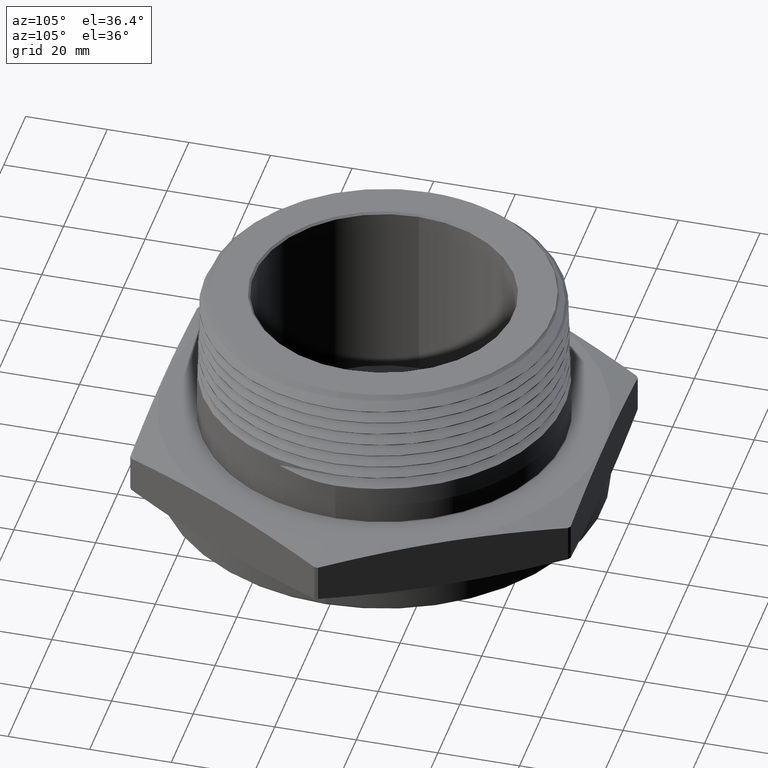
[diagram: clean part render]
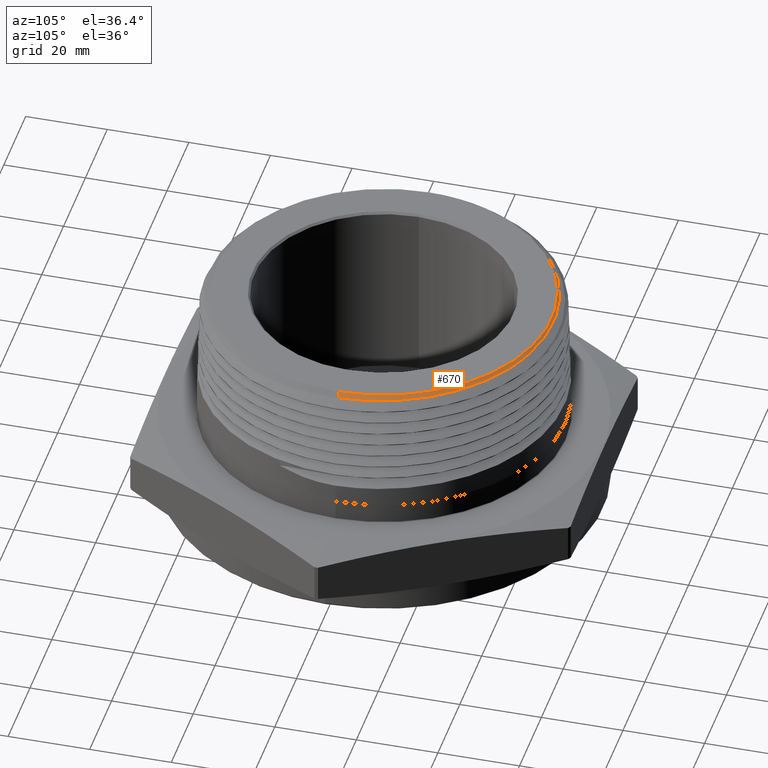
[diagram: same view with one face highlighted and labeled with its STEP entity id]
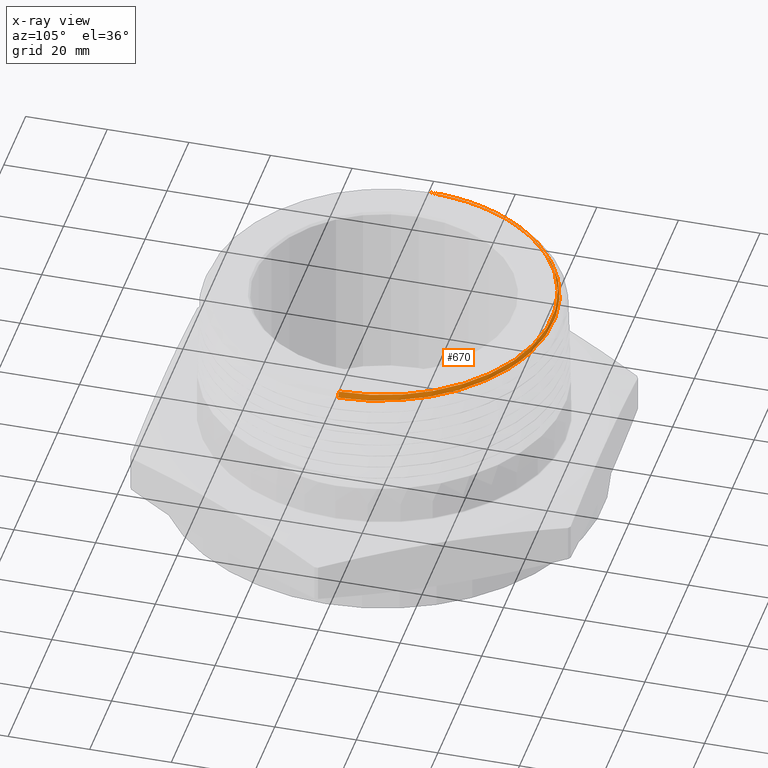
[diagram: x-ray of the same camera — body ghosted, the highlighted face saturated]
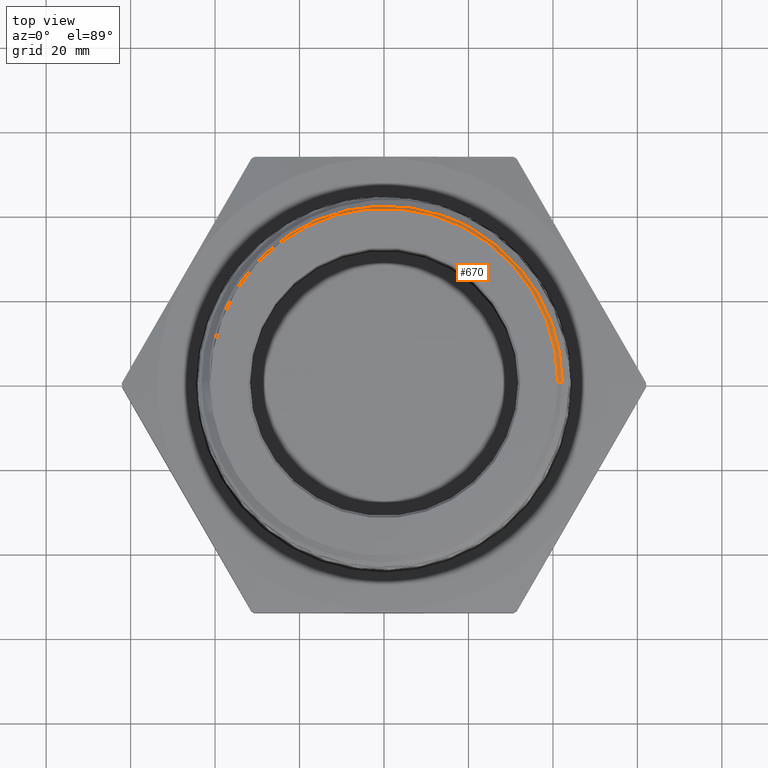
[diagram: same view with one face highlighted and labeled with its STEP entity id]
A machine part, auxiliary view. The second image highlights one B-rep face of the part: STEP entity #670.
The next image is the same camera in x-ray: the body ghosted, the highlighted face saturated — about 0% of this face is hidden behind the body in this view.
A second angle (top view) of the same face is appended — the face is thin or edge-on in the first view.
In plain terms, the highlighted conical surface has half-angle 45 deg.
Its self-contained STEP definition (entity closure, byte-faithful):
#670 = ADVANCED_FACE ( 'NONE', ( #6178 ), #6189, .T. ) ;
#1604 = DIRECTION ( 'NONE',  ( 0.7071067811865512400, 8.659560562354978500E-017, -0.7071067811865438000 ) ) ;
#1608 = CARTESIAN_POINT ( 'NONE',  ( -1.612530671886562000, 0.1860041031667732900, 1.877944281299073900 ) ) ;
#1609 = CARTESIAN_POINT ( 'NONE',  ( 1.854181058096321200, 2.270716897837312200E-016, 1.646128941903681300 ) ) ;
#1610 = CARTESIAN_POINT ( 'NONE',  ( 0.0000000000000000000, 0.0000000000000000000, 1.879999999999999700 ) ) ;
#1611 = DIRECTION ( 'NONE',  ( -0.0000000000000000000, -0.0000000000000000000, 1.000000000000000000 ) ) ;
#1612 = DIRECTION ( 'NONE',  ( 1.000000000000000000, 0.0000000000000000000, 0.0000000000000000000 ) ) ;
#1613 = CARTESIAN_POINT ( 'NONE',  ( -1.616454603007166900, 0.1334023482555117000, 1.878360040814100100 ) ) ;
#1614 = CARTESIAN_POINT ( 'NONE',  ( -1.621913873181038500, -2.048885995248197400E-016, 1.878396126818961500 ) ) ;
#1615 = CARTESIAN_POINT ( 'NONE',  ( -1.621927882305776800, 0.04450601227060677800, 1.878382117694223300 ) ) ;
#1616 = CARTESIAN_POINT ( 'NONE',  ( -1.606062526793967200, 0.2382318241218231700, 1.877527996631516400 ) ) ;
#1617 = CARTESIAN_POINT ( 'NONE',  ( -1.588069637661780900, 0.3419438947028606800, 1.876696440790735400 ) ) ;
#1618 = CARTESIAN_POINT ( 'NONE',  ( -1.576496240556658700, 0.3935399576085468800, 1.876282329637127800 ) ) ;
#1619 = CARTESIAN_POINT ( 'NONE',  ( -1.534693087073091700, 0.5451579432437806400, 1.875044737923222200 ) ) ;
#1620 = CARTESIAN_POINT ( 'NONE',  ( -1.497380511946363700, 0.6426624134809064700, 1.874224291741298600 ) ) ;
#1621 = CARTESIAN_POINT ( 'NONE',  ( -1.427227215876464700, 0.7835506458042224000, 1.872987973136529100 ) ) ;
#1622 = CARTESIAN_POINT ( 'NONE',  ( -1.401360032131022000, 0.8297382255071292800, 1.872570746853134500 ) ) ;
#1623 = CARTESIAN_POINT ( 'NONE',  ( -1.345845931570854600, 0.9185099006529069400, 1.871745809420957600 ) ) ;
#1624 = CARTESIAN_POINT ( 'NONE',  ( -1.316105915540216600, 0.9613105485390305300, 1.871338621112357900 ) ) ;
#1625 = CARTESIAN_POINT ( 'NONE',  ( -1.252745711690326700, 1.043809903747561200, 1.870522917310135900 ) ) ;
#1626 = CARTESIAN_POINT ( 'NONE',  ( -1.219125946570034600, 1.083508942031952100, 1.870113713291998000 ) ) ;
#1627 = CARTESIAN_POINT ( 'NONE',  ( -1.147974999675481300, 1.159780089338331700, 1.869292928464992600 ) ) ;
#1628 = CARTESIAN_POINT ( 'NONE',  ( -1.110385659315412400, 1.196400675399037900, 1.868883281146781000 ) ) ;
#1629 = CARTESIAN_POINT ( 'NONE',  ( -0.9918942045057260700, 1.301095722029514500, 1.867645554152699100 ) ) ;
#1630 = CARTESIAN_POINT ( 'NONE',  ( -0.9074557622890806500, 1.362207346488133700, 1.866828886355517800 ) ) ;
#1631 = CARTESIAN_POINT ( 'NONE',  ( -0.7729496047140715900, 1.441353924993611400, 1.865609366291810300 ) ) ;
#1632 = CARTESIAN_POINT ( 'NONE',  ( -0.7267984469936872300, 1.465636997105630700, 1.865200821634893900 ) ) ;
#1633 = CARTESIAN_POINT ( 'NONE',  ( -0.6318071067315252900, 1.509913179633778600, 1.864378379948349800 ) ) ;
#1634 = CARTESIAN_POINT ( 'NONE',  ( -0.5827878664059469300, 1.529941776082256900, 1.863965650693859800 ) ) ;
#1635 = CARTESIAN_POINT ( 'NONE',  ( -0.4347067885314145900, 1.582285341609359900, 1.862740437946287500 ) ) ;
#1636 = CARTESIAN_POINT ( 'NONE',  ( -0.3337660037714026400, 1.607412312227897200, 1.861927072269689500 ) ) ;
#1637 = CARTESIAN_POINT ( 'NONE',  ( -0.1790652047142726200, 1.630627650193506900, 1.860708824747110400 ) ) ;
#1638 = CARTESIAN_POINT ( 'NONE',  ( -0.1269202850054703100, 1.635941663448501600, 1.860299938138215300 ) ) ;
#1639 = CARTESIAN_POINT ( 'NONE',  ( -0.02159762439883626500, 1.641540410208247400, 1.859474696326377700 ) ) ;
#1640 = CARTESIAN_POINT ( 'NONE',  ( 0.03103484061537636200, 1.641796098860694100, 1.859064912896100500 ) ) ;
#1641 = CARTESIAN_POINT ( 'NONE',  ( 0.1099404567075325900, 1.638385676163774100, 1.858450843746393800 ) ) ;
#1642 = CARTESIAN_POINT ( 'NONE',  ( 0.1362791150652213900, 1.636611288344186300, 1.858245534120943200 ) ) ;
#1643 = CARTESIAN_POINT ( 'NONE',  ( 0.1887034475149996800, 1.631811011213660100, 1.857835229665219000 ) ) ;
#1644 = CARTESIAN_POINT ( 'NONE',  ( 0.2147729419709347700, 1.628789257221115300, 1.857630364972664600 ) ) ;
#1645 = CARTESIAN_POINT ( 'NONE',  ( 0.2925601483296190700, 1.617888503272312700, 1.857016739933964300 ) ) ;
#1646 = CARTESIAN_POINT ( 'NONE',  ( 0.3438571944750986600, 1.608176620720563700, 1.856610487537337700 ) ) ;
#1647 = CARTESIAN_POINT ( 'NONE',  ( 0.4453421398249702300, 1.583920335368128800, 1.855800491379855800 ) ) ;
#1648 = CARTESIAN_POINT ( 'NONE',  ( 0.4955305176681486000, 1.569378094021276300, 1.855394570776848900 ) ) ;
#1649 = CARTESIAN_POINT ( 'NONE',  ( 0.5947819347850283900, 1.535390857188399800, 1.854576331496370400 ) ) ;
#1650 = CARTESIAN_POINT ( 'NONE',  ( 0.6439699637071123500, 1.515863882701554300, 1.854164675913556800 ) ) ;
#1651 = CARTESIAN_POINT ( 'NONE',  ( 0.7871496202760389600, 1.450926650414918300, 1.852946081041068700 ) ) ;
#1652 = CARTESIAN_POINT ( 'NONE',  ( 0.8776525524354106300, 1.398998010634980900, 1.852134475639961100 ) ) ;
#1653 = CARTESIAN_POINT ( 'NONE',  ( 1.005979946440129300, 1.308146289253341300, 1.850917491419164400 ) ) ;
#1654 = CARTESIAN_POINT ( 'NONE',  ( 1.047674116833604600, 1.275527771101139700, 1.850508038166037000 ) ) ;
#1655 = CARTESIAN_POINT ( 'NONE',  ( 1.127040938206970800, 1.207087155311207900, 1.849693436333672600 ) ) ;
#1656 = CARTESIAN_POINT ( 'NONE',  ( 1.164862949440523600, 1.171184585593778800, 1.849288122497343400 ) ) ;
#1657 = CARTESIAN_POINT ( 'NONE',  ( 1.272863117792461000, 1.058536995874662900, 1.848081822600066400 ) ) ;
#1658 = CARTESIAN_POINT ( 'NONE',  ( 1.337637188374356500, 0.9769080986012991200, 1.847274221510737200 ) ) ;
#1659 = CARTESIAN_POINT ( 'NONE',  ( 1.409231257017503200, 0.8664007278334819900, 1.846257553823130900 ) ) ;
#1660 = CARTESIAN_POINT ( 'NONE',  ( 1.423028133815877000, 0.8439429527211423900, 1.846054395906708600 ) ) ;
#1661 = CARTESIAN_POINT ( 'NONE',  ( 1.449405236258297200, 0.7986317406116954000, 1.845649605054766200 ) ) ;
#1662 = CARTESIAN_POINT ( 'NONE',  ( 1.462015353981526800, 0.7757326611776580400, 1.845447553170814500 ) ) ;
#1663 = CARTESIAN_POINT ( 'NONE',  ( 1.498137001135773100, 0.7063162038807551100, 1.844841577420902600 ) ) ;
#1664 = CARTESIAN_POINT ( 'NONE',  ( 1.519943691497252400, 0.6590812358147070100, 1.844437697936964300 ) ) ;
#1665 = CARTESIAN_POINT ( 'NONE',  ( 1.559047279027970600, 0.5627130202251108300, 1.843635457010464500 ) ) ;
#1666 = CARTESIAN_POINT ( 'NONE',  ( 1.576345921932162500, 0.5135805230113718000, 1.843235255054168600 ) ) ;
#1667 = CARTESIAN_POINT ( 'NONE',  ( 1.598862837108338000, 0.4384376522469802800, 1.842629008501307500 ) ) ;
#1668 = CARTESIAN_POINT ( 'NONE',  ( 1.605795578472748500, 0.4131488958823668600, 1.842426055906045700 ) ) ;
#1669 = CARTESIAN_POINT ( 'NONE',  ( 1.618493298103526500, 0.3620798682752572900, 1.842018677858641400 ) ) ;
#1670 = CARTESIAN_POINT ( 'NONE',  ( 1.624248510353098400, 0.3363216260833870000, 1.841814489371009800 ) ) ;
#1671 = CARTESIAN_POINT ( 'NONE',  ( 1.649801091469308200, 0.2076724628114664800, 1.840803482761322400 ) ) ;
#1672 = CARTESIAN_POINT ( 'NONE',  ( 1.660306281317875300, 0.1041369969852181400, 1.840003718682177800 ) ) ;
#1673 = CARTESIAN_POINT ( 'NONE',  ( 1.661108691224700600, -8.454825452827900100E-013, 1.839201308775299900 ) ) ;
#1675 = CARTESIAN_POINT ( 'NONE',  ( -1.620108247908635100, 0.08897346511965156800, 1.878372967367006200 ) ) ;
#1676 = CARTESIAN_POINT ( 'NONE',  ( -1.616454603007166900, 0.1334023482555117000, 1.878360040814100100 ) ) ;
#1677 = CARTESIAN_POINT ( 'NONE',  ( -1.854181058096321200, 0.0000000000000000000, 1.646128941903681300 ) ) ;
#1678 = DIRECTION ( 'NONE',  ( -0.7071067811865512400, 0.0000000000000000000, -0.7071067811865438000 ) ) ;
#2229 = CARTESIAN_POINT ( 'NONE',  ( 1.661108691224700600, -8.454825452827900100E-013, 1.839201308775299900 ) ) ;
#2230 = CARTESIAN_POINT ( 'NONE',  ( 1.620310000000000400, 2.034208883318936100E-016, 1.879999999999999700 ) ) ;
#2232 = CARTESIAN_POINT ( 'NONE',  ( -1.620310000000000400, 0.0000000000000000000, 1.879999999999999700 ) ) ;
#2233 = CARTESIAN_POINT ( 'NONE',  ( -1.616454603007166900, 0.1334023482555117000, 1.878360040814100100 ) ) ;
#2305 = CARTESIAN_POINT ( 'NONE',  ( -1.621913873181038500, -2.048885995248197400E-016, 1.878396126818961500 ) ) ;
#2569 = B_SPLINE_CURVE_WITH_KNOTS ( 'NONE', 3,
 ( #1613, #1608, #1616, #1617, #1618, #1619, #1620, #1621, #1622, #1623, #1624, #1625, #1626, #1627, #1628, #1629, #1630, #1631, #1632, #1633, #1634, #1635, #1636, #1637, #1638, #1639, #1640, #1641, #1642, #1643, #1644, #1645, #1646, #1647, #1648, #1649, #1650, #1651, #1652, #1653, #1654, #1655, #1656, #1657, #1658, #1659, #1660, #1661, #1662, #1663, #1664, #1665, #1666, #1667, #1668, #1669, #1670, #1671, #1672, #1673 ),
 .UNSPECIFIED., .F., .F.,
 ( 4, 2, 2, 2, 2, 2, 2, 2, 2, 2, 2, 2, 2, 2, 2, 2, 2, 2, 2, 2, 2, 2, 2, 2, 2, 2, 2, 2, 2, 4 ),
 ( 0.0000000000000000000, 0.004009244036944043700, 0.008018488073888087300, 0.01603697614777617100, 0.02004622018472021500, 0.02405546422166426500, 0.02806470825860830900, 0.03207395229555236300, 0.04009244036944045000, 0.04410168440638450500, 0.04811092844332854500, 0.05612941651721661800, 0.06013866055416067200, 0.06414790459110471200, 0.06615252660957673900, 0.06815714862804875300, 0.07216639266499279300, 0.07617563670193684700, 0.08018488073888087300, 0.08820336881276898100, 0.09221261284971300800, 0.09622185688665707600, 0.1042403449605451700, 0.1062449669790172100, 0.1082495889974892500, 0.1122588330344332900, 0.1162680770713773600, 0.1182726990898494000, 0.1202773211083214400, 0.1282958091822095600 ),
 .UNSPECIFIED. ) ;
#2570 = B_SPLINE_CURVE_WITH_KNOTS ( 'NONE', 3,
 ( #1614, #1615, #1675, #1676 ),
 .UNSPECIFIED., .F., .F.,
 ( 4, 4 ),
 ( 0.006726750460154643600, 0.01012365725246511200 ),
 .UNSPECIFIED. ) ;
#3457 = VERTEX_POINT ( 'NONE', #2230 ) ;
#3458 = VERTEX_POINT ( 'NONE', #2232 ) ;
#3460 = VERTEX_POINT ( 'NONE', #2233 ) ;
#3461 = VERTEX_POINT ( 'NONE', #2229 ) ;
#3533 = VERTEX_POINT ( 'NONE', #2305 ) ;
#3657 = EDGE_LOOP ( 'NONE', ( #3684, #3685, #3689, #3690, #3691 ) ) ;
#3684 = ORIENTED_EDGE ( 'NONE', *, *, #7152, .F. ) ;
#3685 = ORIENTED_EDGE ( 'NONE', *, *, #7153, .T. ) ;
#3689 = ORIENTED_EDGE ( 'NONE', *, *, #7154, .F. ) ;
#3690 = ORIENTED_EDGE ( 'NONE', *, *, #7155, .F. ) ;
#3691 = ORIENTED_EDGE ( 'NONE', *, *, #7156, .F. ) ;
#5771 = AXIS2_PLACEMENT_3D ( 'NONE', #6065, #6064, #6066 ) ;
#5842 = AXIS2_PLACEMENT_3D ( 'NONE', #1610, #1611, #1612 ) ;
#6064 = DIRECTION ( 'NONE',  ( 0.0000000000000000000, 0.0000000000000000000, -1.000000000000000000 ) ) ;
#6065 = CARTESIAN_POINT ( 'NONE',  ( 0.0000000000000000000, 0.0000000000000000000, 1.646128941903681300 ) ) ;
#6066 = DIRECTION ( 'NONE',  ( -1.000000000000000000, 0.0000000000000000000, 0.0000000000000000000 ) ) ;
#6178 = FACE_OUTER_BOUND ( 'NONE', #3657, .T. ) ;
#6189 = CONICAL_SURFACE ( 'NONE', #5771, 1.854181058096321200, 0.7853981633974536100 ) ;
#6326 = LINE ( 'NONE', #1609, #6333 ) ;
#6329 = CIRCLE ( 'NONE', #5842, 1.620310000000000400 ) ;
#6331 = LINE ( 'NONE', #1677, #6335 ) ;
#6333 = VECTOR ( 'NONE', #1604, 39.37007874015748100 ) ;
#6335 = VECTOR ( 'NONE', #1678, 39.37007874015748100 ) ;
#7152 = EDGE_CURVE ( 'NONE', #3457, #3458, #6329, .T. ) ;
#7153 = EDGE_CURVE ( 'NONE', #3457, #3461, #6326, .T. ) ;
#7154 = EDGE_CURVE ( 'NONE', #3460, #3461, #2569, .T. ) ;
#7155 = EDGE_CURVE ( 'NONE', #3533, #3460, #2570, .T. ) ;
#7156 = EDGE_CURVE ( 'NONE', #3458, #3533, #6331, .T. ) ;